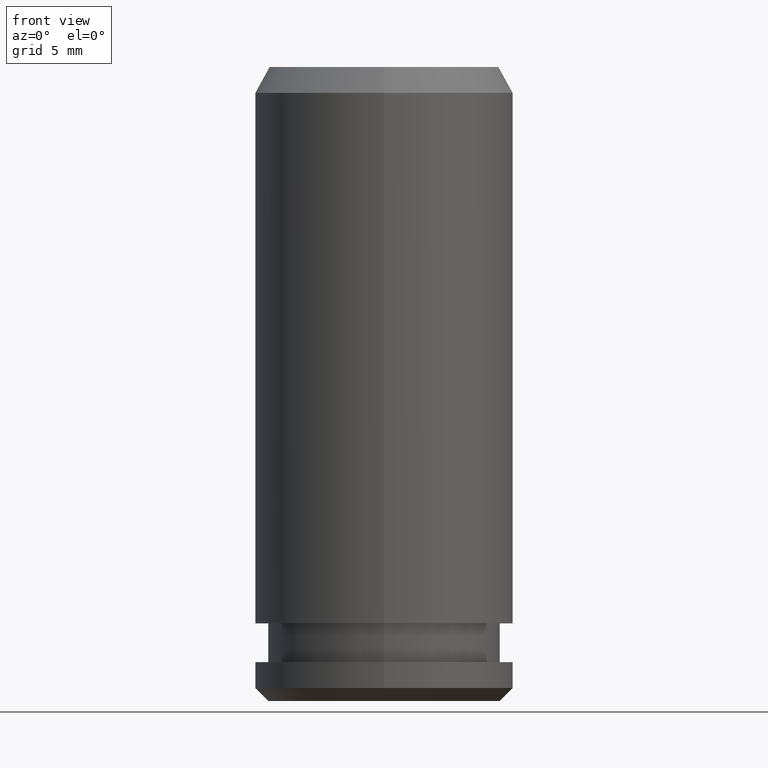
[diagram: clean part render]
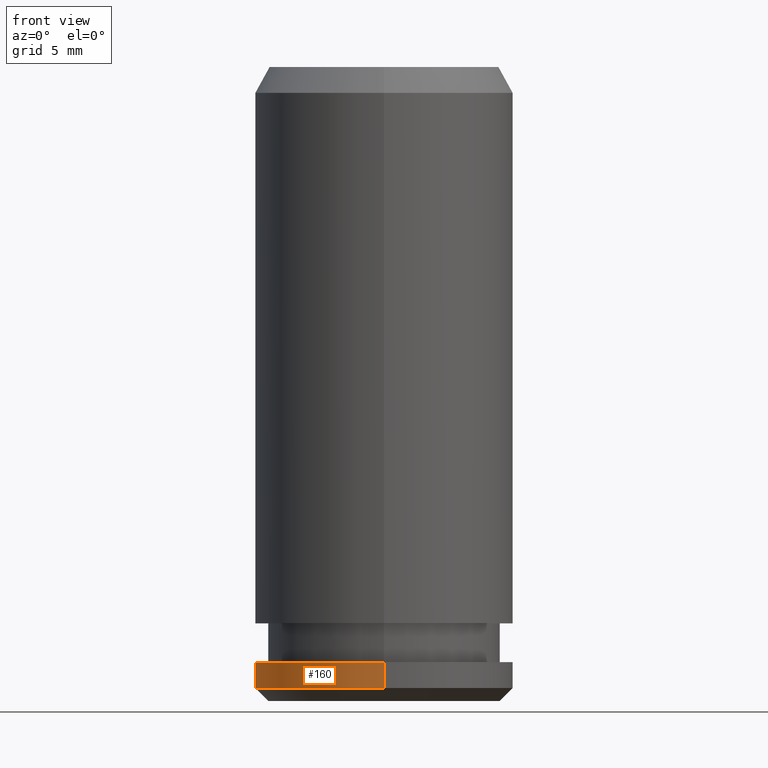
[diagram: same view with one face highlighted and labeled with its STEP entity id]
A machine part, front view. The second image highlights one B-rep face of the part: STEP entity #160.
In plain terms, the highlighted cylindrical surface (partial cylindrical patch) has radius 5 mm, axis along (0, -0, -1).
Its self-contained STEP definition (entity closure, byte-faithful):
#108=EDGE_CURVE('NONE',#168,#130,#277,.T.);
#118=EDGE_CURVE('NONE',#166,#130,#289,.T.);
#124=VERTEX_POINT('NONE',#295);
#130=VERTEX_POINT('NONE',#301);
#160=ADVANCED_FACE('NONE',(#334),#335,.T.);
#166=VERTEX_POINT('NONE',#342);
#168=VERTEX_POINT('NONE',#344);
#182=EDGE_CURVE('NONE',#124,#166,#361,.T.);
#236=EDGE_CURVE('NONE',#124,#168,#425,.T.);
#277=CIRCLE('',#462,5.0);
#289=LINE('',#478,#479);
#295=CARTESIAN_POINT('',(0.0,-5.0,1.5));
#301=CARTESIAN_POINT('',(0.0,5.0,0.5));
#334=FACE_OUTER_BOUND('',#537,.T.);
#335=CYLINDRICAL_SURFACE('',#538,5.0);
#342=CARTESIAN_POINT('',(-6.12303176911189E-016,5.0,1.5));
#344=CARTESIAN_POINT('',(-6.12303176911189E-016,-5.0,0.5));
#361=CIRCLE('',#569,5.0);
#425=LINE('',#652,#653);
#462=AXIS2_PLACEMENT_3D('',#678,#679,#680);
#478=CARTESIAN_POINT('',(-6.12303176911189E-016,5.0,-1.13644490972339));
#479=VECTOR('',#698,1000.0);
#537=EDGE_LOOP('',(#735,#736,#737,#738));
#538=AXIS2_PLACEMENT_3D('',#739,#740,#741);
#569=AXIS2_PLACEMENT_3D('',#776,#777,#778);
#652=CARTESIAN_POINT('',(0.0,-5.0,-1.13644490972339));
#653=VECTOR('',#877,1000.0);
#678=CARTESIAN_POINT('',(0.0,0.0,0.5));
#679=DIRECTION('',(0.0,0.0,-1.0));
#680=DIRECTION('',(0.0,-1.0,0.0));
#698=DIRECTION('',(0.0,0.0,-1.0));
#735=ORIENTED_EDGE('',*,*,#182,.T.);
#736=ORIENTED_EDGE('',*,*,#118,.T.);
#737=ORIENTED_EDGE('',*,*,#108,.F.);
#738=ORIENTED_EDGE('',*,*,#236,.F.);
#739=CARTESIAN_POINT('',(0.0,0.0,-1.13644490972339));
#740=DIRECTION('',(0.0,-0.0,-1.0));
#741=DIRECTION('',(0.0,-1.0,0.0));
#776=CARTESIAN_POINT('',(0.0,0.0,1.5));
#777=DIRECTION('',(0.0,0.0,-1.0));
#778=DIRECTION('',(0.0,-1.0,0.0));
#877=DIRECTION('',(0.0,0.0,-1.0));